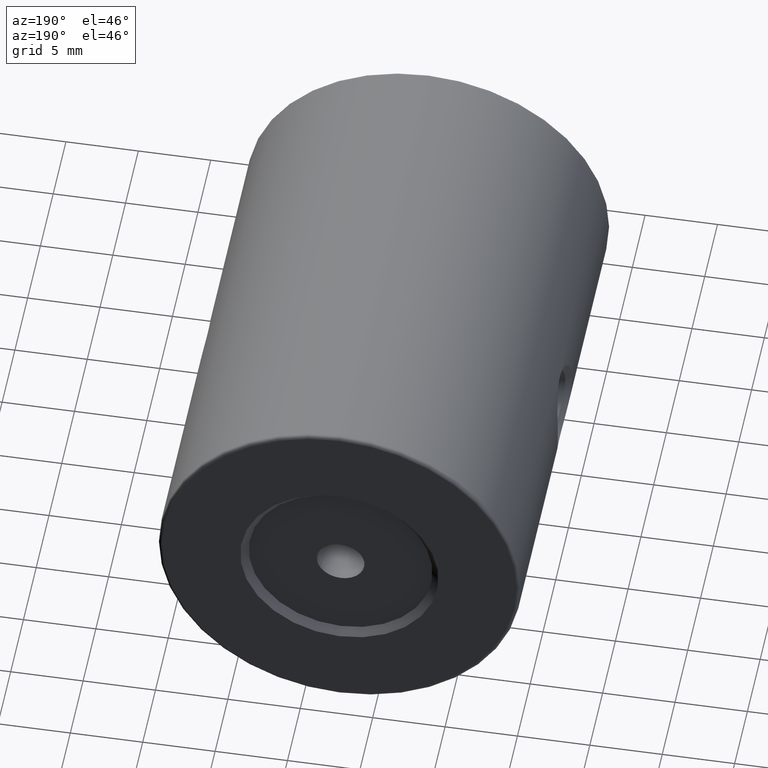
[diagram: clean part render]
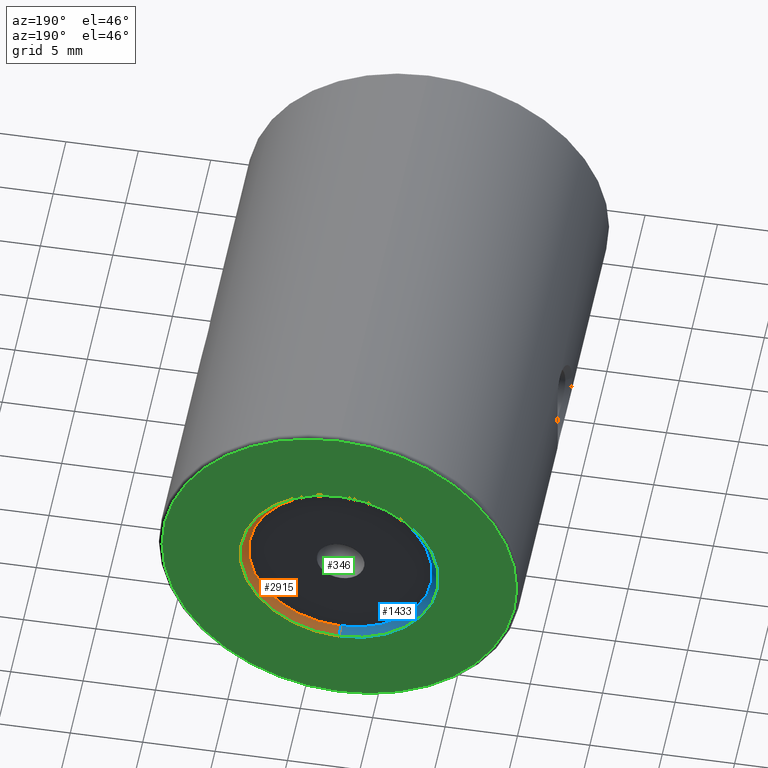
[diagram: same view with three faces highlighted in distinct colors, each labeled with its STEP entity id]
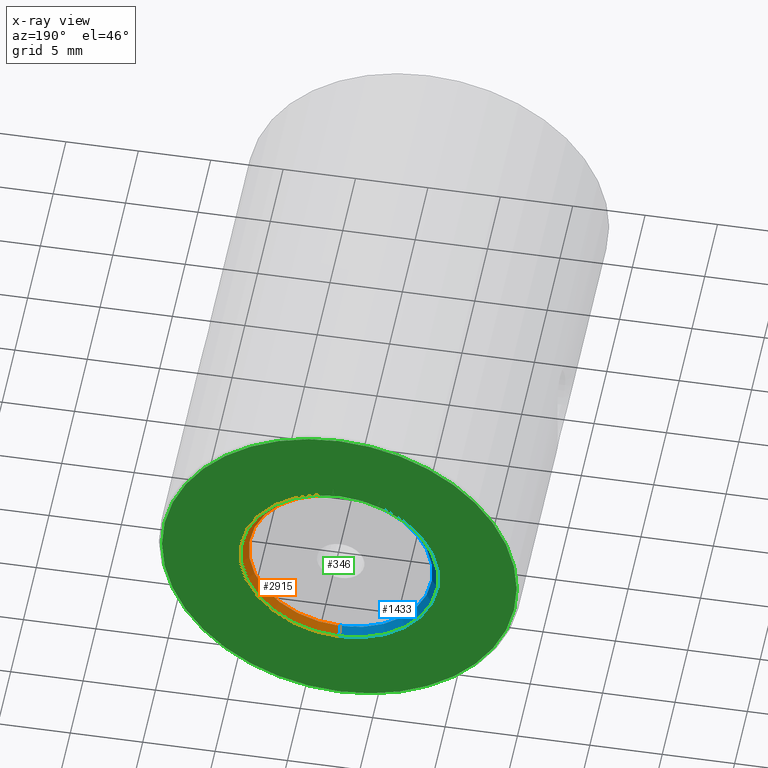
[diagram: x-ray of the same camera — body ghosted, the three highlighted faces saturated]
A machine part, auxiliary view with three faces highlighted in distinct colors.
The next image is the same camera in x-ray (body ghosted, the three faces saturated) — at least one of them is partly hidden behind the body in this view.
Their STEP definitions:

[orange] entity #2915 — the highlighted conical surface has half-angle 45 deg.
#81 = EDGE_CURVE ( 'NONE', #1256, #673, #1232, .T. ) ;
#193 = CARTESIAN_POINT ( 'NONE',  ( -22.50520183104453409, 18.39825218476940094, 43.64999999999999858 ) ) ;
#340 = EDGE_CURVE ( 'NONE', #562, #673, #3218, .T. ) ;
#378 = EDGE_CURVE ( 'NONE', #562, #2323, #2343, .T. ) ;
#387 = VECTOR ( 'NONE', #606, 1000.000000000000114 ) ;
#406 = CARTESIAN_POINT ( 'NONE',  ( -22.50520183104453409, 18.89825218476939028, 43.14999999999999858 ) ) ;
#411 = CARTESIAN_POINT ( 'NONE',  ( -22.50520183104453409, 18.89825218476939028, 56.85000000000000142 ) ) ;
#562 = VERTEX_POINT ( 'NONE', #3023 ) ;
#606 = DIRECTION ( 'NONE',  ( 0.0000000000000000000, 0.7071067811865394681, 0.7071067811865555663 ) ) ;
#673 = VERTEX_POINT ( 'NONE', #411 ) ;
#846 = CARTESIAN_POINT ( 'NONE',  ( -22.50520183104453409, 18.39825218476939028, 43.64999999999999858 ) ) ;
#993 = CONICAL_SURFACE ( 'NONE', #3272, 6.350000000000001421, 0.7853981633974596033 ) ;
#1112 = ORIENTED_EDGE ( 'NONE', *, *, #378, .F. ) ;
#1151 = CARTESIAN_POINT ( 'NONE',  ( -22.50520183104453409, 18.39825218476939028, 50.00000000000000000 ) ) ;
#1232 = CIRCLE ( 'NONE', #3170, 6.850000000000002309 ) ;
#1256 = VERTEX_POINT ( 'NONE', #406 ) ;
#1273 = CARTESIAN_POINT ( 'NONE',  ( -22.50520183104453409, 18.89825218476939028, 50.00000000000000000 ) ) ;
#1551 = DIRECTION ( 'NONE',  ( 0.0000000000000000000, 0.0000000000000000000, 1.000000000000000000 ) ) ;
#1561 = EDGE_LOOP ( 'NONE', ( #2367, #1112, #3298, #3142 ) ) ;
#1729 = AXIS2_PLACEMENT_3D ( 'NONE', #1151, #1954, #3009 ) ;
#1954 = DIRECTION ( 'NONE',  ( 0.0000000000000000000, 1.000000000000000000, 0.0000000000000000000 ) ) ;
#2241 = DIRECTION ( 'NONE',  ( 0.0000000000000000000, 0.0000000000000000000, 1.000000000000000000 ) ) ;
#2323 = VERTEX_POINT ( 'NONE', #846 ) ;
#2343 = CIRCLE ( 'NONE', #1729, 6.350000000000001421 ) ;
#2367 = ORIENTED_EDGE ( 'NONE', *, *, #3311, .F. ) ;
#2368 = DIRECTION ( 'NONE',  ( 8.659560562355031466E-17, 0.7071067811865394681, -0.7071067811865555663 ) ) ;
#2498 = DIRECTION ( 'NONE',  ( 0.0000000000000000000, 1.000000000000000000, 0.0000000000000000000 ) ) ;
#2646 = DIRECTION ( 'NONE',  ( -0.0000000000000000000, -1.000000000000000000, -0.0000000000000000000 ) ) ;
#2915 = ADVANCED_FACE ( 'NONE', ( #3032 ), #993, .F. ) ;
#2919 = VECTOR ( 'NONE', #2368, 1000.000000000000114 ) ;
#2995 = CARTESIAN_POINT ( 'NONE',  ( -22.50520183104453409, 18.39825218476940094, 56.35000000000000142 ) ) ;
#3009 = DIRECTION ( 'NONE',  ( 0.0000000000000000000, 0.0000000000000000000, 1.000000000000000000 ) ) ;
#3023 = CARTESIAN_POINT ( 'NONE',  ( -22.50520183104453409, 18.39825218476939028, 56.35000000000000142 ) ) ;
#3032 = FACE_OUTER_BOUND ( 'NONE', #1561, .T. ) ;
#3142 = ORIENTED_EDGE ( 'NONE', *, *, #81, .F. ) ;
#3170 = AXIS2_PLACEMENT_3D ( 'NONE', #1273, #2646, #1551 ) ;
#3218 = LINE ( 'NONE', #2995, #387 ) ;
#3272 = AXIS2_PLACEMENT_3D ( 'NONE', #3314, #2498, #2241 ) ;
#3298 = ORIENTED_EDGE ( 'NONE', *, *, #340, .T. ) ;
#3311 = EDGE_CURVE ( 'NONE', #2323, #1256, #3372, .T. ) ;
#3314 = CARTESIAN_POINT ( 'NONE',  ( -22.50520183104453409, 18.39825218476940094, 50.00000000000000000 ) ) ;
#3372 = LINE ( 'NONE', #193, #2919 ) ;

[blue] entity #1433 — the highlighted conical surface has half-angle 45 deg.
#193 = CARTESIAN_POINT ( 'NONE',  ( -22.50520183104453409, 18.39825218476940094, 43.64999999999999858 ) ) ;
#340 = EDGE_CURVE ( 'NONE', #562, #673, #3218, .T. ) ;
#385 = ORIENTED_EDGE ( 'NONE', *, *, #2796, .F. ) ;
#387 = VECTOR ( 'NONE', #606, 1000.000000000000114 ) ;
#406 = CARTESIAN_POINT ( 'NONE',  ( -22.50520183104453409, 18.89825218476939028, 43.14999999999999858 ) ) ;
#411 = CARTESIAN_POINT ( 'NONE',  ( -22.50520183104453409, 18.89825218476939028, 56.85000000000000142 ) ) ;
#417 = EDGE_LOOP ( 'NONE', ( #385, #1160, #2792, #3053 ) ) ;
#439 = DIRECTION ( 'NONE',  ( 0.0000000000000000000, 0.0000000000000000000, 1.000000000000000000 ) ) ;
#562 = VERTEX_POINT ( 'NONE', #3023 ) ;
#606 = DIRECTION ( 'NONE',  ( 0.0000000000000000000, 0.7071067811865394681, 0.7071067811865555663 ) ) ;
#673 = VERTEX_POINT ( 'NONE', #411 ) ;
#706 = CARTESIAN_POINT ( 'NONE',  ( -22.50520183104453409, 18.39825218476940094, 50.00000000000000000 ) ) ;
#846 = CARTESIAN_POINT ( 'NONE',  ( -22.50520183104453409, 18.39825218476939028, 43.64999999999999858 ) ) ;
#921 = AXIS2_PLACEMENT_3D ( 'NONE', #2868, #3079, #2056 ) ;
#1016 = AXIS2_PLACEMENT_3D ( 'NONE', #706, #2831, #439 ) ;
#1160 = ORIENTED_EDGE ( 'NONE', *, *, #3311, .T. ) ;
#1180 = CONICAL_SURFACE ( 'NONE', #1016, 6.350000000000001421, 0.7853981633974596033 ) ;
#1256 = VERTEX_POINT ( 'NONE', #406 ) ;
#1433 = ADVANCED_FACE ( 'NONE', ( #2035 ), #1180, .F. ) ;
#1603 = CIRCLE ( 'NONE', #1719, 6.350000000000001421 ) ;
#1700 = CIRCLE ( 'NONE', #921, 6.850000000000002309 ) ;
#1719 = AXIS2_PLACEMENT_3D ( 'NONE', #2265, #3287, #2519 ) ;
#2035 = FACE_OUTER_BOUND ( 'NONE', #417, .T. ) ;
#2056 = DIRECTION ( 'NONE',  ( 0.0000000000000000000, 0.0000000000000000000, 1.000000000000000000 ) ) ;
#2265 = CARTESIAN_POINT ( 'NONE',  ( -22.50520183104453409, 18.39825218476939028, 50.00000000000000000 ) ) ;
#2323 = VERTEX_POINT ( 'NONE', #846 ) ;
#2368 = DIRECTION ( 'NONE',  ( 8.659560562355031466E-17, 0.7071067811865394681, -0.7071067811865555663 ) ) ;
#2519 = DIRECTION ( 'NONE',  ( 0.0000000000000000000, 0.0000000000000000000, 1.000000000000000000 ) ) ;
#2792 = ORIENTED_EDGE ( 'NONE', *, *, #3438, .F. ) ;
#2796 = EDGE_CURVE ( 'NONE', #2323, #562, #1603, .T. ) ;
#2831 = DIRECTION ( 'NONE',  ( 0.0000000000000000000, 1.000000000000000000, 0.0000000000000000000 ) ) ;
#2868 = CARTESIAN_POINT ( 'NONE',  ( -22.50520183104453409, 18.89825218476939028, 50.00000000000000000 ) ) ;
#2919 = VECTOR ( 'NONE', #2368, 1000.000000000000114 ) ;
#2995 = CARTESIAN_POINT ( 'NONE',  ( -22.50520183104453409, 18.39825218476940094, 56.35000000000000142 ) ) ;
#3023 = CARTESIAN_POINT ( 'NONE',  ( -22.50520183104453409, 18.39825218476939028, 56.35000000000000142 ) ) ;
#3053 = ORIENTED_EDGE ( 'NONE', *, *, #340, .F. ) ;
#3079 = DIRECTION ( 'NONE',  ( -0.0000000000000000000, -1.000000000000000000, -0.0000000000000000000 ) ) ;
#3218 = LINE ( 'NONE', #2995, #387 ) ;
#3287 = DIRECTION ( 'NONE',  ( 0.0000000000000000000, 1.000000000000000000, 0.0000000000000000000 ) ) ;
#3311 = EDGE_CURVE ( 'NONE', #2323, #1256, #3372, .T. ) ;
#3372 = LINE ( 'NONE', #193, #2919 ) ;
#3438 = EDGE_CURVE ( 'NONE', #673, #1256, #1700, .T. ) ;

[green] entity #346 — the highlighted planar face has unit normal (0, 1, 0).
#76 = DIRECTION ( 'NONE',  ( 0.0000000000000000000, -0.0000000000000000000, 1.000000000000000000 ) ) ;
#81 = EDGE_CURVE ( 'NONE', #1256, #673, #1232, .T. ) ;
#171 = CARTESIAN_POINT ( 'NONE',  ( -22.50520183104453409, 18.89825218476939028, 50.00000000000000000 ) ) ;
#336 = ORIENTED_EDGE ( 'NONE', *, *, #81, .T. ) ;
#342 = FACE_BOUND ( 'NONE', #2089, .T. ) ;
#346 = ADVANCED_FACE ( 'NONE', ( #1671, #342 ), #1414, .T. ) ;
#373 = CIRCLE ( 'NONE', #2495, 12.24999999999999645 ) ;
#406 = CARTESIAN_POINT ( 'NONE',  ( -22.50520183104453409, 18.89825218476939028, 43.14999999999999858 ) ) ;
#411 = CARTESIAN_POINT ( 'NONE',  ( -22.50520183104453409, 18.89825218476939028, 56.85000000000000142 ) ) ;
#525 = CARTESIAN_POINT ( 'NONE',  ( -22.50520183104453409, 18.89825218476939028, 62.25000000000000000 ) ) ;
#616 = VERTEX_POINT ( 'NONE', #657 ) ;
#657 = CARTESIAN_POINT ( 'NONE',  ( -22.50520183104453409, 18.89825218476939028, 37.75000000000000711 ) ) ;
#673 = VERTEX_POINT ( 'NONE', #411 ) ;
#772 = CARTESIAN_POINT ( 'NONE',  ( -22.50520183104453409, 18.89825218476939028, 50.00000000000000000 ) ) ;
#921 = AXIS2_PLACEMENT_3D ( 'NONE', #2868, #3079, #2056 ) ;
#933 = ORIENTED_EDGE ( 'NONE', *, *, #1475, .T. ) ;
#984 = DIRECTION ( 'NONE',  ( 0.0000000000000000000, 1.000000000000000000, 0.0000000000000000000 ) ) ;
#1232 = CIRCLE ( 'NONE', #3170, 6.850000000000002309 ) ;
#1256 = VERTEX_POINT ( 'NONE', #406 ) ;
#1273 = CARTESIAN_POINT ( 'NONE',  ( -22.50520183104453409, 18.89825218476939028, 50.00000000000000000 ) ) ;
#1414 = PLANE ( 'NONE',  #2561 ) ;
#1429 = DIRECTION ( 'NONE',  ( 0.0000000000000000000, 1.000000000000000000, 0.0000000000000000000 ) ) ;
#1475 = EDGE_CURVE ( 'NONE', #1580, #616, #1626, .T. ) ;
#1477 = EDGE_LOOP ( 'NONE', ( #933, #1851 ) ) ;
#1551 = DIRECTION ( 'NONE',  ( 0.0000000000000000000, 0.0000000000000000000, 1.000000000000000000 ) ) ;
#1580 = VERTEX_POINT ( 'NONE', #525 ) ;
#1626 = CIRCLE ( 'NONE', #2168, 12.24999999999999645 ) ;
#1671 = FACE_OUTER_BOUND ( 'NONE', #1477, .T. ) ;
#1687 = EDGE_CURVE ( 'NONE', #616, #1580, #373, .T. ) ;
#1700 = CIRCLE ( 'NONE', #921, 6.850000000000002309 ) ;
#1839 = DIRECTION ( 'NONE',  ( 0.0000000000000000000, 0.0000000000000000000, 1.000000000000000000 ) ) ;
#1851 = ORIENTED_EDGE ( 'NONE', *, *, #1687, .T. ) ;
#2056 = DIRECTION ( 'NONE',  ( 0.0000000000000000000, 0.0000000000000000000, 1.000000000000000000 ) ) ;
#2089 = EDGE_LOOP ( 'NONE', ( #3336, #336 ) ) ;
#2168 = AXIS2_PLACEMENT_3D ( 'NONE', #171, #984, #3153 ) ;
#2476 = CARTESIAN_POINT ( 'NONE',  ( -22.50520183104453409, 18.89825218476939028, 50.00000000000000000 ) ) ;
#2495 = AXIS2_PLACEMENT_3D ( 'NONE', #772, #2618, #1839 ) ;
#2561 = AXIS2_PLACEMENT_3D ( 'NONE', #2476, #1429, #76 ) ;
#2618 = DIRECTION ( 'NONE',  ( 0.0000000000000000000, 1.000000000000000000, 0.0000000000000000000 ) ) ;
#2646 = DIRECTION ( 'NONE',  ( -0.0000000000000000000, -1.000000000000000000, -0.0000000000000000000 ) ) ;
#2868 = CARTESIAN_POINT ( 'NONE',  ( -22.50520183104453409, 18.89825218476939028, 50.00000000000000000 ) ) ;
#3079 = DIRECTION ( 'NONE',  ( -0.0000000000000000000, -1.000000000000000000, -0.0000000000000000000 ) ) ;
#3153 = DIRECTION ( 'NONE',  ( 0.0000000000000000000, 0.0000000000000000000, 1.000000000000000000 ) ) ;
#3170 = AXIS2_PLACEMENT_3D ( 'NONE', #1273, #2646, #1551 ) ;
#3336 = ORIENTED_EDGE ( 'NONE', *, *, #3438, .T. ) ;
#3438 = EDGE_CURVE ( 'NONE', #673, #1256, #1700, .T. ) ;